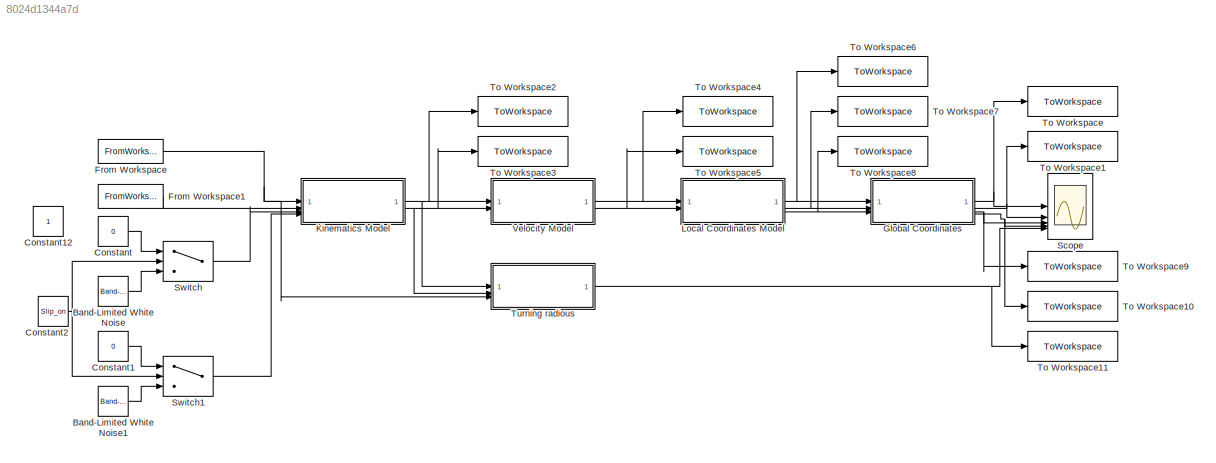
MODEL slx_8024d1344a7d
KIND model
CONFIG AbsTol = auto
CONFIG EnableMultiTasking = off
CONFIG FixedStep = Sample_T
CONFIG MaxStep = auto
CONFIG MinStep = auto
CONFIG RelTol = 1e-3
CONFIG SampleTimeConstraint = Unconstrained
CONFIG SolverName = FixedStepAuto
CONFIG StartTime = 0.0
CONFIG StopTime = 120
BLOCK [Reference] Band-Limited White Noise  REF=simulink/Sources/Band-Limited
White Noise
  SourceBlock = simulink/Sources/Band-Limited\nWhite Noise
  SourceType = Band-Limited White Noise.
BLOCK [Reference] Band-Limited White Noise1  REF=simulink/Sources/Band-Limited
White Noise
  SourceBlock = simulink/Sources/Band-Limited\nWhite Noise
  SourceType = Band-Limited White Noise.
BLOCK [Constant] Constant
  Value = 0
BLOCK [Constant] Constant1
  Value = 0
BLOCK [Constant] Constant12
  IOType = siggen
BLOCK [Constant] Constant2
  Value = Slip_on
BLOCK [FromWorkspace] From Workspace
  VariableName = V
BLOCK [FromWorkspace] From Workspace1
  VariableName = R
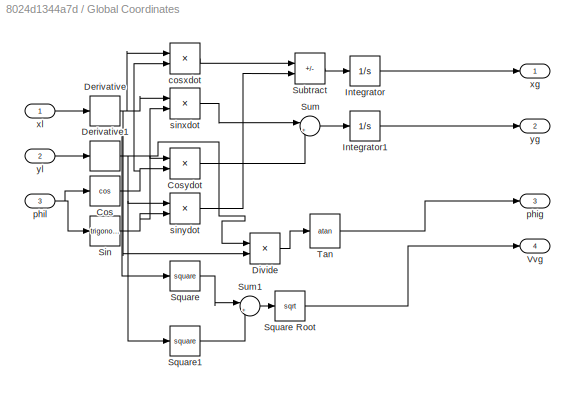
BLOCK [SubSystem] Global Coordinates
BLOCK [Trigonometry] Global Coordinates/Cos
  Operator = cos
BLOCK [Product] Global Coordinates/Cosydot
BLOCK [Derivative] Global Coordinates/Derivative
BLOCK [Derivative] Global Coordinates/Derivative1
BLOCK [Product] Global Coordinates/Divide
  Inputs = */
BLOCK [Integrator] Global Coordinates/Integrator
BLOCK [Integrator] Global Coordinates/Integrator1
BLOCK [Trigonometry] Global Coordinates/Sin
BLOCK [Math] Global Coordinates/Square
  Operator = square
BLOCK [Sqrt] Global Coordinates/Square Root
BLOCK [Math] Global Coordinates/Square1
  Operator = square
BLOCK [Sum] Global Coordinates/Subtract
  IconShape = rectangular
  Inputs = +-
BLOCK [Sum] Global Coordinates/Sum
  Inputs = |++
BLOCK [Sum] Global Coordinates/Sum1
  Inputs = |++
BLOCK [Trigonometry] Global Coordinates/Tan
  Operator = atan
BLOCK [Outport] Global Coordinates/Vvg
  Port = 4
BLOCK [Product] Global Coordinates/cosxdot
BLOCK [Outport] Global Coordinates/phig
  Port = 3
BLOCK [Inport] Global Coordinates/phil
  Port = 3
BLOCK [Product] Global Coordinates/sinxdot
BLOCK [Product] Global Coordinates/sinydot
BLOCK [Outport] Global Coordinates/xg
BLOCK [Inport] Global Coordinates/xl
BLOCK [Outport] Global Coordinates/yg
  Port = 2
BLOCK [Inport] Global Coordinates/yl
  Port = 2
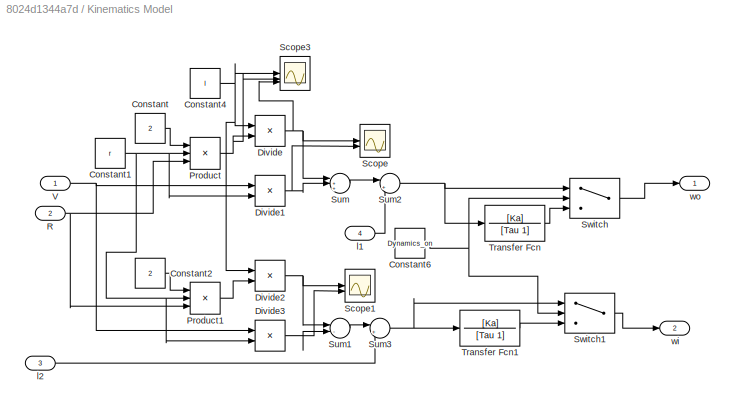
BLOCK [SubSystem] Kinematics Model
BLOCK [Constant] Kinematics Model/Constant
  Value = 2
BLOCK [Constant] Kinematics Model/Constant1
  Value = r
BLOCK [Constant] Kinematics Model/Constant2
  Value = 2
BLOCK [Constant] Kinematics Model/Constant4
  Value = l
BLOCK [Constant] Kinematics Model/Constant6
  Value = Dynamics_on
BLOCK [Product] Kinematics Model/Divide
  Inputs = */
BLOCK [Product] Kinematics Model/Divide1
  Inputs = */
BLOCK [Product] Kinematics Model/Divide2
  Inputs = */
BLOCK [Product] Kinematics Model/Divide3
  Inputs = */
BLOCK [Product] Kinematics Model/Product
  Inputs = 3
BLOCK [Product] Kinematics Model/Product1
  Inputs = 3
BLOCK [Inport] Kinematics Model/R
  Port = 2
BLOCK [Scope] Kinematics Model/Scope
  Floating = off
  NumInputPorts = 2
  ScopeSpecificationString = Simulink.scopes.TimeScopeBlockCfg('CurrentConfiguration', extmgr.ConfigurationSet(extmgr.Configuration('Core','General UI',true),extmgr.Configuration('Core','Source UI',true),extmgr.Configuration('Sources','WiredSimulink',true,'DataLoggingVariableName','ScopeData4'),extmgr.Configuration('Visuals','Time Domain',true,'SerializedDisplays',{struct('MinYLimReal','-6.875','MaxYLimReal','11.875','YLabelR...<+1472ch>
BLOCK [Scope] Kinematics Model/Scope1
  Floating = off
  NumInputPorts = 2
  ScopeSpecificationString = Simulink.scopes.TimeScopeBlockCfg('CurrentConfiguration', extmgr.ConfigurationSet(extmgr.Configuration('Core','General UI',true),extmgr.Configuration('Core','Source UI',true),extmgr.Configuration('Sources','WiredSimulink',true,'DataLoggingVariableName','ScopeData5'),extmgr.Configuration('Visuals','Time Domain',true,'SerializedDisplays',{struct('MinYLimReal','11.97917','MaxYLimReal','17.1875','YLab...<+1378ch>
BLOCK [Scope] Kinematics Model/Scope3
  Floating = off
  NumInputPorts = 3
  ScopeSpecificationString = Simulink.scopes.TimeScopeBlockCfg('CurrentConfiguration', extmgr.ConfigurationSet(extmgr.Configuration('Core','General UI',true),extmgr.Configuration('Core','Source UI',true),extmgr.Configuration('Sources','WiredSimulink',true,'DataLoggingVariableName','ScopeData7'),extmgr.Configuration('Visuals','Time Domain',true,'SerializedDisplays',{struct('MinYLimReal','-3.499','MaxYLimReal','6.9748','YLabelR...<+1456ch>
BLOCK [Sum] Kinematics Model/Sum
  Inputs = |++-
BLOCK [Sum] Kinematics Model/Sum1
  Inputs = |-+
BLOCK [Sum] Kinematics Model/Sum2
  Inputs = |++
BLOCK [Sum] Kinematics Model/Sum3
  Inputs = |++
BLOCK [Switch] Kinematics Model/Switch
  Criteria = u2 ~= 0
  InputSameDT = off
  SaturateOnIntegerOverflow = off
BLOCK [Switch] Kinematics Model/Switch1
  Criteria = u2 ~= 0
  InputSameDT = off
  SaturateOnIntegerOverflow = off
BLOCK [TransferFcn] Kinematics Model/Transfer Fcn
  Denominator = [Tau 1]
  Numerator = [Ka]
BLOCK [TransferFcn] Kinematics Model/Transfer Fcn1
  Denominator = [Tau 1]
  Numerator = [Ka]
BLOCK [Inport] Kinematics Model/V
BLOCK [Inport] Kinematics Model/l1
  Port = 4
BLOCK [Inport] Kinematics Model/l2
  Port = 3
BLOCK [Outport] Kinematics Model/wi
  Port = 2
BLOCK [Outport] Kinematics Model/wo
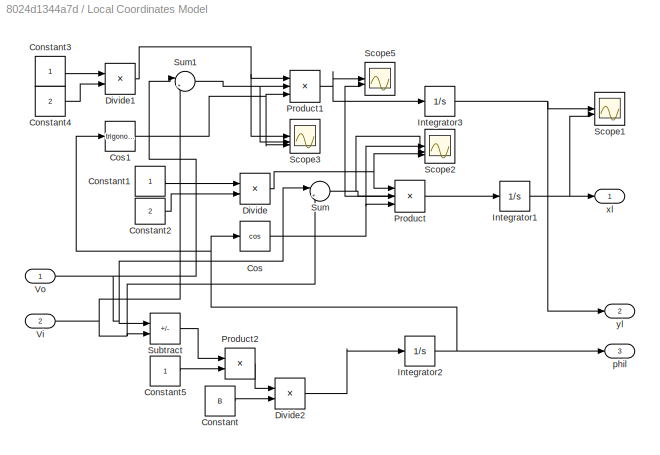
BLOCK [SubSystem] Local Coordinates Model
BLOCK [Constant] Local Coordinates Model/Constant
  Value = B
BLOCK [Constant] Local Coordinates Model/Constant1
BLOCK [Constant] Local Coordinates Model/Constant2
  Value = 2
BLOCK [Constant] Local Coordinates Model/Constant3
BLOCK [Constant] Local Coordinates Model/Constant4
  Value = 2
BLOCK [Constant] Local Coordinates Model/Constant5
BLOCK [Trigonometry] Local Coordinates Model/Cos
  Operator = cos
BLOCK [Trigonometry] Local Coordinates Model/Cos1
BLOCK [Product] Local Coordinates Model/Divide
  Inputs = */
BLOCK [Product] Local Coordinates Model/Divide1
  Inputs = */
BLOCK [Product] Local Coordinates Model/Divide2
  Inputs = */
BLOCK [Integrator] Local Coordinates Model/Integrator1
  InitialCondition = 0.01
BLOCK [Integrator] Local Coordinates Model/Integrator2
BLOCK [Integrator] Local Coordinates Model/Integrator3
  InitialCondition = 0.01
BLOCK [Product] Local Coordinates Model/Product
  Inputs = 3
BLOCK [Product] Local Coordinates Model/Product1
  Inputs = 3
BLOCK [Product] Local Coordinates Model/Product2
BLOCK [Scope] Local Coordinates Model/Scope1
  Floating = off
  NumInputPorts = 2
  ScopeSpecificationString = Simulink.scopes.TimeScopeBlockCfg('CurrentConfiguration', extmgr.ConfigurationSet(extmgr.Configuration('Core','General UI',true),extmgr.Configuration('Core','Source UI',true),extmgr.Configuration('Sources','WiredSimulink',true,'DataLoggingVariableName','ScopeData1'),extmgr.Configuration('Visuals','Time Domain',true,'SerializedDisplays',{struct('MinYLimReal','-0.93425','MaxYLimReal','1.59318','YLab...<+1417ch>
BLOCK [Scope] Local Coordinates Model/Scope2
  Floating = off
  NumInputPorts = 3
  ScopeSpecificationString = Simulink.scopes.TimeScopeBlockCfg('CurrentConfiguration', extmgr.ConfigurationSet(extmgr.Configuration('Core','General UI',true),extmgr.Configuration('Core','Source UI',true),extmgr.Configuration('Sources','WiredSimulink',true,'DataLoggingVariableName','ScopeData2'),extmgr.Configuration('Visuals','Time Domain',true,'SerializedDisplays',{struct('MinYLimReal','-1.38628','MaxYLimReal','2.4765','YLabe...<+1830ch>
BLOCK [Scope] Local Coordinates Model/Scope3
  Floating = off
  NumInputPorts = 3
  ScopeSpecificationString = Simulink.scopes.TimeScopeBlockCfg('CurrentConfiguration', extmgr.ConfigurationSet(extmgr.Configuration('Core','General UI',true),extmgr.Configuration('Core','Source UI',true),extmgr.Configuration('Sources','WiredSimulink',true,'DataLoggingVariableName','ScopeData3'),extmgr.Configuration('Visuals','Time Domain',true,'SerializedDisplays',{struct('MinYLimReal','-0.47662','MaxYLimReal','2.37543','YLab...<+1836ch>
BLOCK [Scope] Local Coordinates Model/Scope5
  Floating = off
  NumInputPorts = 2
  ScopeSpecificationString = Simulink.scopes.TimeScopeBlockCfg('CurrentConfiguration', extmgr.ConfigurationSet(extmgr.Configuration('Core','General UI',true),extmgr.Configuration('Core','Source UI',true),extmgr.Configuration('Sources','WiredSimulink',true,'DataLoggingVariableName','ScopeData5'),extmgr.Configuration('Visuals','Time Domain',true,'SerializedDisplays',{struct('MinYLimReal','-0.07343','MaxYLimReal','0.08007','YLab...<+1410ch>
BLOCK [Sum] Local Coordinates Model/Subtract
  IconShape = rectangular
  Inputs = +-
BLOCK [Sum] Local Coordinates Model/Sum
  Inputs = |++
BLOCK [Sum] Local Coordinates Model/Sum1
  Inputs = |++
BLOCK [Inport] Local Coordinates Model/Vi
  Port = 2
BLOCK [Inport] Local Coordinates Model/Vo
BLOCK [Outport] Local Coordinates Model/phil
  Port = 3
BLOCK [Outport] Local Coordinates Model/xl
BLOCK [Outport] Local Coordinates Model/yl
  Port = 2
BLOCK [Scope] Scope
  Floating = off
  NumInputPorts = 5
  ScopeSpecificationString = Simulink.scopes.TimeScopeBlockCfg('CurrentConfiguration', extmgr.ConfigurationSet(extmgr.Configuration('Core','General UI',true),extmgr.Configuration('Core','Source UI',true),extmgr.Configuration('Sources','WiredSimulink',true),extmgr.Configuration('Visuals','Time Domain',true,'SerializedDisplays',{struct('MinYLimReal','-6.35408','MaxYLimReal','8.25167','YLabelReal','','MinYLimMag','0.00000','MaxY...<+6287ch>
BLOCK [Switch] Switch
  Criteria = u2 ~= 0
  InputSameDT = off
  SaturateOnIntegerOverflow = off
BLOCK [Switch] Switch1
  Criteria = u2 ~= 0
  InputSameDT = off
  SaturateOnIntegerOverflow = off
BLOCK [ToWorkspace] To Workspace
  FixptAsFi = on
  MaxDataPoints = inf
  SampleTime = -1
  VariableName = xg_var
BLOCK [ToWorkspace] To Workspace1
  FixptAsFi = on
  MaxDataPoints = inf
  SampleTime = -1
  VariableName = yg_var
BLOCK [ToWorkspace] To Workspace10
  FixptAsFi = on
  MaxDataPoints = inf
  SampleTime = -1
  VariableName = Vvg_var
BLOCK [ToWorkspace] To Workspace11
  FixptAsFi = on
  MaxDataPoints = inf
  SampleTime = -1
  VariableName = Rout__var
BLOCK [ToWorkspace] To Workspace2
  FixptAsFi = on
  MaxDataPoints = inf
  SampleTime = -1
  VariableName = wo_var
BLOCK [ToWorkspace] To Workspace3
  FixptAsFi = on
  MaxDataPoints = inf
  SampleTime = -1
  VariableName = wi_var
BLOCK [ToWorkspace] To Workspace4
  FixptAsFi = on
  MaxDataPoints = inf
  SampleTime = -1
  VariableName = Vo_var
BLOCK [ToWorkspace] To Workspace5
  FixptAsFi = on
  MaxDataPoints = inf
  SampleTime = -1
  VariableName = Vi_var
BLOCK [ToWorkspace] To Workspace6
  FixptAsFi = on
  MaxDataPoints = inf
  SampleTime = -1
  VariableName = xl_var
BLOCK [ToWorkspace] To Workspace7
  FixptAsFi = on
  MaxDataPoints = inf
  SampleTime = -1
  VariableName = yl_var
BLOCK [ToWorkspace] To Workspace8
  FixptAsFi = on
  MaxDataPoints = inf
  SampleTime = -1
  VariableName = phil_var
BLOCK [ToWorkspace] To Workspace9
  FixptAsFi = on
  MaxDataPoints = inf
  SampleTime = -1
  VariableName = phig_var
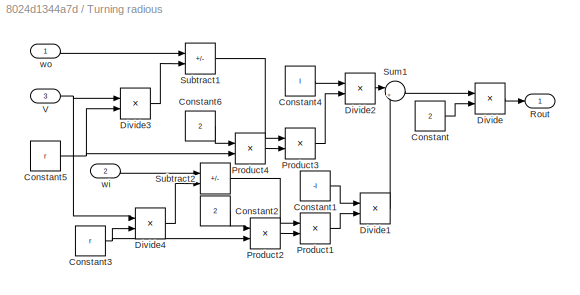
BLOCK [SubSystem] Turning radious
BLOCK [Constant] Turning radious/Constant
  Value = 2
BLOCK [Constant] Turning radious/Constant1
  Value = -l
BLOCK [Constant] Turning radious/Constant2
  Value = 2
BLOCK [Constant] Turning radious/Constant3
  Value = r
BLOCK [Constant] Turning radious/Constant4
  Value = l
BLOCK [Constant] Turning radious/Constant5
  Value = r
BLOCK [Constant] Turning radious/Constant6
  Value = 2
BLOCK [Product] Turning radious/Divide
  Inputs = */
BLOCK [Product] Turning radious/Divide1
  Inputs = */
BLOCK [Product] Turning radious/Divide2
  Inputs = */
BLOCK [Product] Turning radious/Divide3
  Inputs = */
BLOCK [Product] Turning radious/Divide4
  Inputs = */
BLOCK [Product] Turning radious/Product1
BLOCK [Product] Turning radious/Product2
BLOCK [Product] Turning radious/Product3
BLOCK [Product] Turning radious/Product4
BLOCK [Outport] Turning radious/Rout
BLOCK [Sum] Turning radious/Subtract1
  IconShape = rectangular
  Inputs = +-
BLOCK [Sum] Turning radious/Subtract2
  IconShape = rectangular
  Inputs = +-
BLOCK [Sum] Turning radious/Sum1
  Inputs = |++
BLOCK [Inport] Turning radious/V
  Port = 3
BLOCK [Inport] Turning radious/wi
  Port = 2
BLOCK [Inport] Turning radious/wo
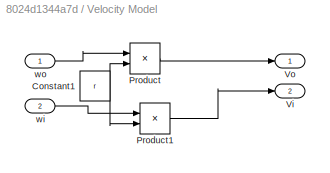
BLOCK [SubSystem] Velocity Model
BLOCK [Constant] Velocity Model/Constant1
  Value = r
BLOCK [Product] Velocity Model/Product
BLOCK [Product] Velocity Model/Product1
BLOCK [Outport] Velocity Model/Vi
  Port = 2
BLOCK [Outport] Velocity Model/Vo
BLOCK [Inport] Velocity Model/wi
  Port = 2
BLOCK [Inport] Velocity Model/wo
LINE Band-Limited White Noise1:1 -> Switch1:3
LINE Band-Limited White Noise:1 -> Switch:3
LINE Constant1:1 -> Switch1:1
NET Constant2:1 -> Switch1:2, Switch:2
LINE Constant:1 -> Switch:1
LINE From Workspace1:1 -> Kinematics Model:2
NET From Workspace:1 -> Kinematics Model:1, Turning radious:3
NET Global Coordinates/Cos:1 -> Global Coordinates/Cosydot:2, Global Coordinates/cosxdot:2
LINE Global Coordinates/Cosydot:1 -> Global Coordinates/Sum:2
NET Global Coordinates/Derivative1:1 -> Global Coordinates/Cosydot:1, Global Coordinates/Divide:1, Global Coordinates/Square1:1, Global Coordinates/sinydot:1
NET Global Coordinates/Derivative:1 -> Global Coordinates/Divide:2, Global Coordinates/Square:1, Global Coordinates/cosxdot:1, Global Coordinates/sinxdot:1
LINE Global Coordinates/Divide:1 -> Global Coordinates/Tan:1
LINE Global Coordinates/Integrator1:1 -> Global Coordinates/yg:1
LINE Global Coordinates/Integrator:1 -> Global Coordinates/xg:1
NET Global Coordinates/Sin:1 -> Global Coordinates/sinxdot:2, Global Coordinates/sinydot:2
LINE Global Coordinates/Square Root:1 -> Global Coordinates/Vvg:1
LINE Global Coordinates/Square1:1 -> Global Coordinates/Sum1:2
LINE Global Coordinates/Square:1 -> Global Coordinates/Sum1:1
LINE Global Coordinates/Subtract:1 -> Global Coordinates/Integrator:1
LINE Global Coordinates/Sum1:1 -> Global Coordinates/Square Root:1
LINE Global Coordinates/Sum:1 -> Global Coordinates/Integrator1:1
LINE Global Coordinates/Tan:1 -> Global Coordinates/phig:1
LINE Global Coordinates/cosxdot:1 -> Global Coordinates/Subtract:1
NET Global Coordinates/phil:1 -> Global Coordinates/Cos:1, Global Coordinates/Sin:1
LINE Global Coordinates/sinxdot:1 -> Global Coordinates/Sum:1
LINE Global Coordinates/sinydot:1 -> Global Coordinates/Subtract:2
LINE Global Coordinates/xl:1 -> Global Coordinates/Derivative:1
LINE Global Coordinates/yl:1 -> Global Coordinates/Derivative1:1
NET Global Coordinates:1 -> Scope:1, To Workspace:1
NET Global Coordinates:2 -> Scope:2, To Workspace1:1
NET Global Coordinates:3 -> Scope:3, To Workspace9:1
NET Global Coordinates:4 -> Scope:4, To Workspace10:1
NET Kinematics Model/Constant1:1 -> Kinematics Model/Divide1:2, Kinematics Model/Divide3:2, Kinematics Model/Product1:2, Kinematics Model/Product:2
LINE Kinematics Model/Constant2:1 -> Kinematics Model/Product1:1
NET Kinematics Model/Constant4:1 -> Kinematics Model/Divide2:1, Kinematics Model/Divide:1, Kinematics Model/Scope3:1
NET Kinematics Model/Constant6:1 -> Kinematics Model/Switch1:2, Kinematics Model/Switch:2
LINE Kinematics Model/Constant:1 -> Kinematics Model/Product:1
NET Kinematics Model/Divide1:1 -> Kinematics Model/Scope:2, Kinematics Model/Sum:2
NET Kinematics Model/Divide2:1 -> Kinematics Model/Scope1:1, Kinematics Model/Sum1:1
NET Kinematics Model/Divide3:1 -> Kinematics Model/Scope1:2, Kinematics Model/Sum1:2
NET Kinematics Model/Divide:1 -> Kinematics Model/Scope3:3, Kinematics Model/Scope:1, Kinematics Model/Sum:1
LINE Kinematics Model/Product1:1 -> Kinematics Model/Divide2:2
NET Kinematics Model/Product:1 -> Kinematics Model/Divide:2, Kinematics Model/Scope3:2
NET Kinematics Model/R:1 -> Kinematics Model/Product1:3, Kinematics Model/Product:3
LINE Kinematics Model/Sum1:1 -> Kinematics Model/Sum3:1
NET Kinematics Model/Sum2:1 -> Kinematics Model/Switch:1, Kinematics Model/Transfer Fcn:1
NET Kinematics Model/Sum3:1 -> Kinematics Model/Switch1:1, Kinematics Model/Transfer Fcn1:1
LINE Kinematics Model/Sum:1 -> Kinematics Model/Sum2:1
LINE Kinematics Model/Switch1:1 -> Kinematics Model/wi:1
LINE Kinematics Model/Switch:1 -> Kinematics Model/wo:1
LINE Kinematics Model/Transfer Fcn1:1 -> Kinematics Model/Switch1:3
LINE Kinematics Model/Transfer Fcn:1 -> Kinematics Model/Switch:3
NET Kinematics Model/V:1 -> Kinematics Model/Divide1:1, Kinematics Model/Divide3:1
LINE Kinematics Model/l1:1 -> Kinematics Model/Sum2:2
LINE Kinematics Model/l2:1 -> Kinematics Model/Sum3:2
NET Kinematics Model:1 -> To Workspace2:1, Turning radious:1, Velocity Model:1
NET Kinematics Model:2 -> To Workspace3:1, Turning radious:2, Velocity Model:2
LINE Local Coordinates Model/Constant1:1 -> Local Coordinates Model/Divide:1
LINE Local Coordinates Model/Constant2:1 -> Local Coordinates Model/Divide:2
LINE Local Coordinates Model/Constant3:1 -> Local Coordinates Model/Divide1:1
LINE Local Coordinates Model/Constant4:1 -> Local Coordinates Model/Divide1:2
LINE Local Coordinates Model/Constant5:1 -> Local Coordinates Model/Product2:2
LINE Local Coordinates Model/Constant:1 -> Local Coordinates Model/Divide2:2
NET Local Coordinates Model/Cos1:1 -> Local Coordinates Model/Product1:3, Local Coordinates Model/Scope3:3
NET Local Coordinates Model/Cos:1 -> Local Coordinates Model/Product:3, Local Coordinates Model/Scope2:2
NET Local Coordinates Model/Divide1:1 -> Local Coordinates Model/Product1:1, Local Coordinates Model/Scope3:1
LINE Local Coordinates Model/Divide2:1 -> Local Coordinates Model/Integrator2:1
NET Local Coordinates Model/Divide:1 -> Local Coordinates Model/Product:1, Local Coordinates Model/Scope2:3
NET Local Coordinates Model/Integrator1:1 -> Local Coordinates Model/Scope1:2, Local Coordinates Model/xl:1
NET Local Coordinates Model/Integrator2:1 -> Local Coordinates Model/Cos1:1, Local Coordinates Model/Cos:1, Local Coordinates Model/phil:1
NET Local Coordinates Model/Integrator3:1 -> Local Coordinates Model/Scope1:1, Local Coordinates Model/yl:1
NET Local Coordinates Model/Product1:1 -> Local Coordinates Model/Integrator3:1, Local Coordinates Model/Scope5:1
LINE Local Coordinates Model/Product2:1 -> Local Coordinates Model/Divide2:1
NET Local Coordinates Model/Product:1 -> Local Coordinates Model/Integrator1:1, Local Coordinates Model/Scope5:2
LINE Local Coordinates Model/Subtract:1 -> Local Coordinates Model/Product2:1
NET Local Coordinates Model/Sum1:1 -> Local Coordinates Model/Product1:2, Local Coordinates Model/Scope3:2
NET Local Coordinates Model/Sum:1 -> Local Coordinates Model/Product:2, Local Coordinates Model/Scope2:1
NET Local Coordinates Model/Vi:1 -> Local Coordinates Model/Subtract:2, Local Coordinates Model/Sum1:2, Local Coordinates Model/Sum:2
NET Local Coordinates Model/Vo:1 -> Local Coordinates Model/Subtract:1, Local Coordinates Model/Sum1:1, Local Coordinates Model/Sum:1
NET Local Coordinates Model:1 -> Global Coordinates:1, To Workspace6:1
NET Local Coordinates Model:2 -> Global Coordinates:2, To Workspace7:1
NET Local Coordinates Model:3 -> Global Coordinates:3, To Workspace8:1
LINE Switch1:1 -> Kinematics Model:4
LINE Switch:1 -> Kinematics Model:3
LINE Turning radious/Constant1:1 -> Turning radious/Divide1:1
LINE Turning radious/Constant2:1 -> Turning radious/Product2:1
NET Turning radious/Constant3:1 -> Turning radious/Divide4:2, Turning radious/Product2:2
LINE Turning radious/Constant4:1 -> Turning radious/Divide2:1
NET Turning radious/Constant5:1 -> Turning radious/Divide3:2, Turning radious/Product4:2
LINE Turning radious/Constant6:1 -> Turning radious/Product4:1
LINE Turning radious/Constant:1 -> Turning radious/Divide:2
LINE Turning radious/Divide1:1 -> Turning radious/Sum1:2
LINE Turning radious/Divide2:1 -> Turning radious/Sum1:1
LINE Turning radious/Divide3:1 -> Turning radious/Subtract1:2
LINE Turning radious/Divide4:1 -> Turning radious/Subtract2:2
LINE Turning radious/Divide:1 -> Turning radious/Rout:1
LINE Turning radious/Product1:1 -> Turning radious/Divide1:2
LINE Turning radious/Product2:1 -> Turning radious/Product1:2
LINE Turning radious/Product3:1 -> Turning radious/Divide2:2
LINE Turning radious/Product4:1 -> Turning radious/Product3:2
LINE Turning radious/Subtract1:1 -> Turning radious/Product3:1
LINE Turning radious/Subtract2:1 -> Turning radious/Product1:1
LINE Turning radious/Sum1:1 -> Turning radious/Divide:1
NET Turning radious/V:1 -> Turning radious/Divide3:1, Turning radious/Divide4:1
LINE Turning radious/wi:1 -> Turning radious/Subtract2:1
LINE Turning radious/wo:1 -> Turning radious/Subtract1:1
NET Turning radious:1 -> Scope:5, To Workspace11:1
NET Velocity Model/Constant1:1 -> Velocity Model/Product1:2, Velocity Model/Product:2
LINE Velocity Model/Product1:1 -> Velocity Model/Vi:1
LINE Velocity Model/Product:1 -> Velocity Model/Vo:1
LINE Velocity Model/wi:1 -> Velocity Model/Product1:1
LINE Velocity Model/wo:1 -> Velocity Model/Product:1
NET Velocity Model:1 -> Local Coordinates Model:1, To Workspace4:1
NET Velocity Model:2 -> Local Coordinates Model:2, To Workspace5:1
note: NET lines group one-source signal fan-out (src -> all destinations, sorted); 1:1 wires keep LINE
